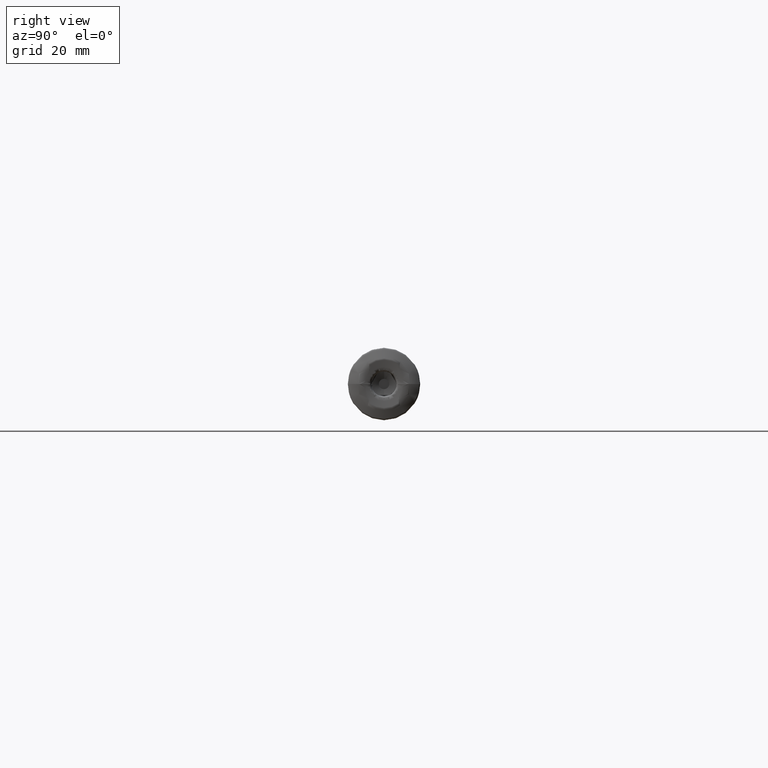
[diagram: clean part render]
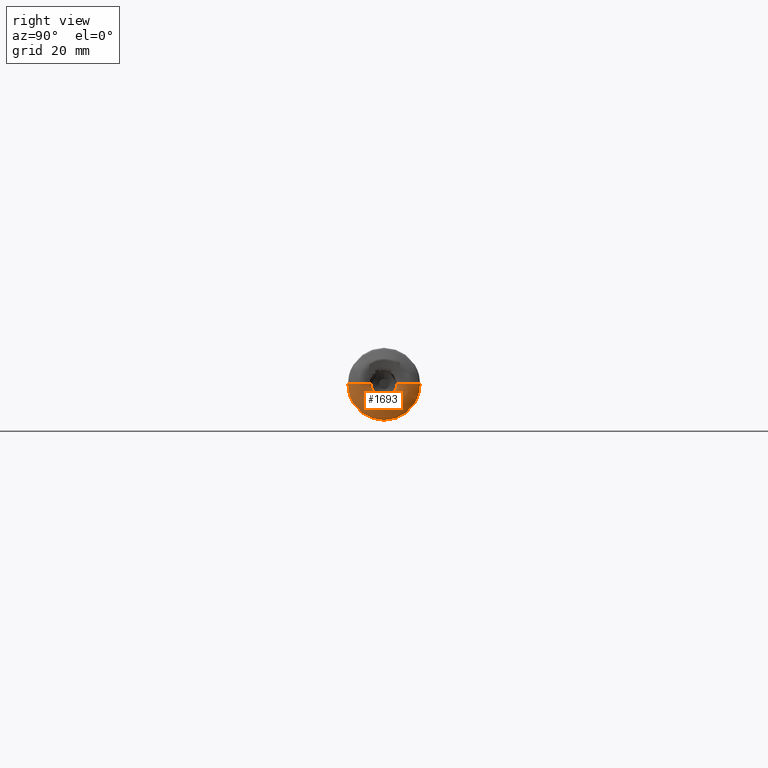
[diagram: same view with one face highlighted and labeled with its STEP entity id]
A machine part, right view. The second image highlights one B-rep face of the part: STEP entity #1693.
In plain terms, the highlighted face is a freeform B-spline surface patch.
Its self-contained STEP definition (entity closure, byte-faithful):
#3 = EDGE_CURVE ( 'NONE', #1426, #2893, #10, .T. ) ;
#5 = CARTESIAN_POINT ( 'NONE',  ( 199.4119645448908800, 8.669143952701206900, 0.0000000000000000000 ) ) ;
#10 = CIRCLE ( 'NONE', #393, 3.524748830736267500 ) ;
#11 = CARTESIAN_POINT ( 'NONE',  ( 195.9548673972028900, 9.771315552143319000, 0.0000000000000000000 ) ) ;
#12 = CARTESIAN_POINT ( 'NONE',  ( 199.5600713942759500, -8.226737700096022000, -1.007484799184745300E-015 ) ) ;
#17 = CARTESIAN_POINT ( 'NONE',  ( 194.6386071151543400, -9.655722273275953800, -1.182484937542320200E-015 ) ) ;
#25 = CARTESIAN_POINT ( 'NONE',  ( 193.7467906099954900, -9.577412630905819000, -19.15482526181163800 ) ) ;
#26 = CARTESIAN_POINT ( 'NONE',  ( 199.6216856158434600, -8.042808869529160600, -9.849600138222828600E-016 ) ) ;
#39 = CARTESIAN_POINT ( 'NONE',  ( 194.2669520451954100, 9.623079687076103300, 0.0000000000000000000 ) ) ;
#40 = CARTESIAN_POINT ( 'NONE',  ( 199.7198599573671900, -4.890791981063745000, -5.989492744905258500E-016 ) ) ;
#42 = CARTESIAN_POINT ( 'NONE',  ( 193.7467906099955100, -9.577412630905820700, -1.172894772255224500E-015 ) ) ;
#53 = CARTESIAN_POINT ( 'NONE',  ( 199.5270704870732200, -3.768665411281232100, -4.615284032982904700E-016 ) ) ;
#63 = ORIENTED_EDGE ( 'NONE', *, *, #3, .T. ) ;
#75 = CARTESIAN_POINT ( 'NONE',  ( 199.5792677437501700, -3.924804937301749100, -4.806499803744314800E-016 ) ) ;
#84 = CARTESIAN_POINT ( 'NONE',  ( 199.8746375878326900, 7.284263749510698100, 0.0000000000000000000 ) ) ;
#97 = CARTESIAN_POINT ( 'NONE',  ( 194.2669520451954100, 9.623079687076103300, 0.0000000000000000000 ) ) ;
#130 = VERTEX_POINT ( 'NONE', #1091 ) ;
#150 = CARTESIAN_POINT ( 'NONE',  ( 197.6599947447499500, -9.920574891577453900, -19.84114978315490800 ) ) ;
#172 = CARTESIAN_POINT ( 'NONE',  ( 191.4293979957715200, -9.372855675777430000, -1.147843770221093300E-015 ) ) ;
#188 = CARTESIAN_POINT ( 'NONE',  ( 191.4638893845114800, -9.376701179652005900, -1.148314708622204000E-015 ) ) ;
#241 = CARTESIAN_POINT ( 'NONE',  ( 199.9575874871412400, -6.476802528865865900, -12.95360505773173200 ) ) ;
#264 = CARTESIAN_POINT ( 'NONE',  ( 199.8818364765468200, 5.969050106520177800, 0.0000000000000000000 ) ) ;
#267 = CARTESIAN_POINT ( 'NONE',  ( 199.9233176210255500, -6.241481303348313000, -7.643610100083561800E-016 ) ) ;
#276 = CARTESIAN_POINT ( 'NONE',  ( 198.5718774307785000, -10.00754271673519100, -20.01508543347038200 ) ) ;
#278 = CARTESIAN_POINT ( 'NONE',  ( 199.9971799208755700, 6.793817987459164000, 0.0000000000000000000 ) ) ;
#299 = CARTESIAN_POINT ( 'NONE',  ( 199.5270704870732200, 3.768665411281232100, 0.0000000000000000000 ) ) ;
#301 = CARTESIAN_POINT ( 'NONE',  ( 198.3345865014057900, 9.974130476694655900, 0.0000000000000000000 ) ) ;
#307 = CARTESIAN_POINT ( 'NONE',  ( 199.3105781519771000, -8.971050438694492300, -1.098636820473666800E-015 ) ) ;
#312 = CARTESIAN_POINT ( 'NONE',  ( 199.4119645448908800, -8.669143952701206900, -1.061663939302316700E-015 ) ) ;
#321 = CARTESIAN_POINT ( 'NONE',  ( 198.3345865014057700, 9.974130476694655900, -19.94826095338930500 ) ) ;
#324 = CARTESIAN_POINT ( 'NONE',  ( 193.7467906099955100, 9.577412630905820700, 0.0000000000000000000 ) ) ;
#325 = CARTESIAN_POINT ( 'NONE',  ( 199.7015285006921500, 7.804126116101917500, 0.0000000000000000000 ) ) ;
#331 = CARTESIAN_POINT ( 'NONE',  ( 198.3345865014057900, 9.974130476694655900, 0.0000000000000000000 ) ) ;
#338 = CARTESIAN_POINT ( 'NONE',  ( 193.1957047401006700, -9.528924728964533100, -19.05784945792906600 ) ) ;
#340 = CARTESIAN_POINT ( 'NONE',  ( 199.6216856158434600, 8.042808869529160600, 0.0000000000000000000 ) ) ;
#347 = CARTESIAN_POINT ( 'NONE',  ( 199.6437202294671100, -4.378186700153892600, -5.361732328412976200E-016 ) ) ;
#359 = CARTESIAN_POINT ( 'NONE',  ( 195.5628970118675300, -9.736894901505726500, -1.192425717476317300E-015 ) ) ;
#360 = CARTESIAN_POINT ( 'NONE',  ( 199.9376653144677200, -7.104203952299462400, -14.20840790459892800 ) ) ;
#362 = CARTESIAN_POINT ( 'NONE',  ( 199.2403954301726400, -3.544720621546354300, -7.089441243092709400 ) ) ;
#374 = CARTESIAN_POINT ( 'NONE',  ( 195.2420344223780800, -9.708715759506176800, -19.41743151901235400 ) ) ;
#376 = CARTESIAN_POINT ( 'NONE',  ( 199.2403954301726400, 3.544720621546354700, -7.089441243092708500 ) ) ;
#377 = CARTESIAN_POINT ( 'NONE',  ( 191.4293979957715200, 9.372855675777435300, 0.0000000000000000000 ) ) ;
#380 = CARTESIAN_POINT ( 'NONE',  ( 196.8045187664748100, -9.845907074256627900, -1.205775858319066000E-015 ) ) ;
#388 = CARTESIAN_POINT ( 'NONE',  ( 196.3749575718929900, 9.808220288187936100, 0.0000000000000000000 ) ) ;
#390 = CARTESIAN_POINT ( 'NONE',  ( 199.7909970509005000, 5.364262816467027400, -10.72852563293405300 ) ) ;
#393 = AXIS2_PLACEMENT_3D ( 'NONE', #1739, #2985, #1384 ) ;
#402 = CARTESIAN_POINT ( 'NONE',  ( 199.7909970509005000, -5.364262816467025600, -10.72852563293405300 ) ) ;
#409 = CARTESIAN_POINT ( 'NONE',  ( 199.3105781519771000, 8.971050438694492300, 0.0000000000000000000 ) ) ;
#459 = CARTESIAN_POINT ( 'NONE',  ( 197.6599947447499500, -9.920574891577455600, -1.214920028667193300E-015 ) ) ;
#463 = CARTESIAN_POINT ( 'NONE',  ( 194.6386071151543400, 9.655722273275953800, 0.0000000000000000000 ) ) ;
#488 = CARTESIAN_POINT ( 'NONE',  ( 198.8874328272482900, 9.927476827135711400, 0.0000000000000000000 ) ) ;
#498 = CARTESIAN_POINT ( 'NONE',  ( 191.8250809874841100, 9.408367885567450600, 0.0000000000000000000 ) ) ;
#572 = CARTESIAN_POINT ( 'NONE',  ( 199.9575874871412400, 6.476802528865867700, 0.0000000000000000000 ) ) ;
#592 = CARTESIAN_POINT ( 'NONE',  ( 199.9971799208755400, 6.793817987459163100, -13.58763597491832400 ) ) ;
#605 = CARTESIAN_POINT ( 'NONE',  ( 199.9971799208755400, -6.793817987459162200, -13.58763597491832400 ) ) ;
#611 = CARTESIAN_POINT ( 'NONE',  ( 199.1398904212730400, -9.476393459065148400, -18.95278691813029700 ) ) ;
#617 = CARTESIAN_POINT ( 'NONE',  ( 199.7942596870010200, 7.528622152444535600, 0.0000000000000000000 ) ) ;
#625 = CARTESIAN_POINT ( 'NONE',  ( 199.4119645448908800, -8.669143952701205100, -17.33828790540241000 ) ) ;
#631 = CARTESIAN_POINT ( 'NONE',  ( 192.1780770274573900, -9.439093133072656600, -1.155955519227119000E-015 ) ) ;
#636 = CARTESIAN_POINT ( 'NONE',  ( 199.5792677437501700, 3.924804937301749100, 0.0000000000000000000 ) ) ;
#641 = CARTESIAN_POINT ( 'NONE',  ( 194.6386071151543400, -9.655722273275953800, -19.31144454655190800 ) ) ;
#642 = CARTESIAN_POINT ( 'NONE',  ( 199.5600713942759800, 8.226737700096022000, -16.45347540019204000 ) ) ;
#648 = CARTESIAN_POINT ( 'NONE',  ( 199.7198599573671900, -4.890791981063745000, -5.989492744905258500E-016 ) ) ;
#656 = CARTESIAN_POINT ( 'NONE',  ( 199.2206415278179500, 9.242613445145174500, -18.48522689029034500 ) ) ;
#661 = CARTESIAN_POINT ( 'NONE',  ( 199.7942596870010200, -7.528622152444535600, -9.219903020981057000E-016 ) ) ;
#669 = CARTESIAN_POINT ( 'NONE',  ( 192.6119085367816100, -9.477933791716461400, -18.95586758343292300 ) ) ;
#670 = CARTESIAN_POINT ( 'NONE',  ( 199.4916733344939000, 8.430952631885135800, 0.0000000000000000000 ) ) ;
#671 = CARTESIAN_POINT ( 'NONE',  ( 199.5792677437501700, 3.924804937301749100, 0.0000000000000000000 ) ) ;
#676 = CARTESIAN_POINT ( 'NONE',  ( 199.3105781519771000, -8.971050438694492300, -1.098636820473666800E-015 ) ) ;
#683 = CARTESIAN_POINT ( 'NONE',  ( 199.6437202294671100, -4.378186700153891700, -8.756373400307783300 ) ) ;
#686 = CARTESIAN_POINT ( 'NONE',  ( 194.2669520451954100, -9.623079687076103300, -1.178487373671766300E-015 ) ) ;
#694 = CARTESIAN_POINT ( 'NONE',  ( 199.7198599573671900, 4.890791981063745000, 0.0000000000000000000 ) ) ;
#702 = CARTESIAN_POINT ( 'NONE',  ( 199.6036751270756000, 4.135506003673531200, 0.0000000000000000000 ) ) ;
#715 = CARTESIAN_POINT ( 'NONE',  ( 198.7389781143983200, 9.990615986158877200, 0.0000000000000000000 ) ) ;
#719 = CARTESIAN_POINT ( 'NONE',  ( 192.1780770274573900, 9.439093133072656600, 0.0000000000000000000 ) ) ;
#720 = CARTESIAN_POINT ( 'NONE',  ( 199.0145282432595800, -9.808799892423826000, -19.61759978484765200 ) ) ;
#722 = CARTESIAN_POINT ( 'NONE',  ( 199.6820012863188700, 4.640381309272351400, -9.280762618544701000 ) ) ;
#755 = CARTESIAN_POINT ( 'NONE',  ( 199.8818364765468200, -5.969050106520177800, -7.309978106900103700E-016 ) ) ;
#765 = CARTESIAN_POINT ( 'NONE',  ( 191.5996406962192700, -9.385338457373437700, -18.77067691474687500 ) ) ;
#799 = CARTESIAN_POINT ( 'NONE',  ( 191.4293979957715200, 9.372855675777435300, 0.0000000000000000000 ) ) ;
#866 = CARTESIAN_POINT ( 'NONE',  ( 198.7389781143983200, 9.990615986158877200, 0.0000000000000000000 ) ) ;
#891 = CARTESIAN_POINT ( 'NONE',  ( 199.9575874871412400, 6.476802528865868600, -12.95360505773173200 ) ) ;
#901 = CARTESIAN_POINT ( 'NONE',  ( 199.9806326561305500, 6.952329924318734200, 0.0000000000000000000 ) ) ;
#932 = CARTESIAN_POINT ( 'NONE',  ( 199.1376732748907400, 3.524748830736267500, 0.0000000000000000000 ) ) ;
#942 = CARTESIAN_POINT ( 'NONE',  ( 199.3105781519771000, 8.971050438694490500, -17.94210087738898100 ) ) ;
#945 = CARTESIAN_POINT ( 'NONE',  ( 199.0883015219359600, -9.649449036425453500, -1.181716687599394500E-015 ) ) ;
#949 = CARTESIAN_POINT ( 'NONE',  ( 199.7198599573671900, 4.890791981063745000, 0.0000000000000000000 ) ) ;
#956 = CARTESIAN_POINT ( 'NONE',  ( 199.7015285006921800, 7.804126116101918400, -15.60825223220383200 ) ) ;
#963 = CARTESIAN_POINT ( 'NONE',  ( 198.7389781143983200, -9.990615986158877200, -1.223497588895984700E-015 ) ) ;
#972 = CARTESIAN_POINT ( 'NONE',  ( 193.7467906099954900, 9.577412630905820700, -19.15482526181163800 ) ) ;
#973 = CARTESIAN_POINT ( 'NONE',  ( 199.1398904212730400, 9.476393459065150200, 0.0000000000000000000 ) ) ;
#975 = CARTESIAN_POINT ( 'NONE',  ( 199.6036751270756000, 4.135506003673530300, -8.271012007347060500 ) ) ;
#979 = CARTESIAN_POINT ( 'NONE',  ( 194.9679311315870200, -9.684643535001368900, -1.186026770602253300E-015 ) ) ;
#992 = CARTESIAN_POINT ( 'NONE',  ( 191.4293979957715200, -9.372855675777435300, -1.147843770221093700E-015 ) ) ;
#1002 = CARTESIAN_POINT ( 'NONE',  ( 194.9679311315870200, -9.684643535001367100, -19.36928707000273400 ) ) ;
#1007 = CARTESIAN_POINT ( 'NONE',  ( 195.2420344223780800, -9.708715759506178600, -1.188974767871070500E-015 ) ) ;
#1021 = CARTESIAN_POINT ( 'NONE',  ( 195.9548673972028900, -9.771315552143317300, -19.54263110428663500 ) ) ;
#1022 = CARTESIAN_POINT ( 'NONE',  ( 199.7909970509005000, -5.364262816467027400, -6.569327287971511100E-016 ) ) ;
#1027 = CARTESIAN_POINT ( 'NONE',  ( 199.3855371809107500, 3.600040746353761800, 0.0000000000000000000 ) ) ;
#1032 = CARTESIAN_POINT ( 'NONE',  ( 199.5270704870731900, 3.768665411281232600, -7.537330822562462500 ) ) ;
#1047 = CARTESIAN_POINT ( 'NONE',  ( 195.9548673972028900, 9.771315552143319000, 0.0000000000000000000 ) ) ;
#1084 = CARTESIAN_POINT ( 'NONE',  ( 191.5996406962192700, -9.385338457373439500, -1.149372470073694100E-015 ) ) ;
#1091 = CARTESIAN_POINT ( 'NONE',  ( 191.4293979957715200, -9.372855675777435300, -1.147843770221093700E-015 ) ) ;
#1104 = CARTESIAN_POINT ( 'NONE',  ( 197.2499513093479200, 9.885197841270109400, -19.77039568254021900 ) ) ;
#1131 = CARTESIAN_POINT ( 'NONE',  ( 198.0467923785635900, 9.955370482197189100, 0.0000000000000000000 ) ) ;
#1214 = CARTESIAN_POINT ( 'NONE',  ( 199.9806326561305500, -6.952329924318734200, -8.514148588433299100E-016 ) ) ;
#1230 = CARTESIAN_POINT ( 'NONE',  ( 199.9376653144677200, 7.104203952299464200, -14.20840790459892500 ) ) ;
#1246 = CARTESIAN_POINT ( 'NONE',  ( 199.1376732748907400, 3.524748830736267500, 0.0000000000000000000 ) ) ;
#1252 = CARTESIAN_POINT ( 'NONE',  ( 199.0883015219359600, 9.649449036425453500, 0.0000000000000000000 ) ) ;
#1263 = CARTESIAN_POINT ( 'NONE',  ( 199.6216856158434300, -8.042808869529158900, -16.08561773905831800 ) ) ;
#1268 = CARTESIAN_POINT ( 'NONE',  ( 199.7015285006921500, -7.804126116101917500, -9.557298068226478200E-016 ) ) ;
#1270 = CARTESIAN_POINT ( 'NONE',  ( 199.5600713942759500, 8.226737700096022000, 0.0000000000000000000 ) ) ;
#1274 = CARTESIAN_POINT ( 'NONE',  ( 199.2206415278179500, -9.242613445145172700, -18.48522689029034500 ) ) ;
#1281 = CARTESIAN_POINT ( 'NONE',  ( 199.9376653144676900, -7.104203952299465100, -8.700140630673515900E-016 ) ) ;
#1288 = CARTESIAN_POINT ( 'NONE',  ( 195.2420344223780800, 9.708715759506178600, 0.0000000000000000000 ) ) ;
#1289 = CARTESIAN_POINT ( 'NONE',  ( 199.1376732748907400, -3.524748830736266200, -7.049497661472532400 ) ) ;
#1291 = CARTESIAN_POINT ( 'NONE',  ( 192.6119085367816100, -9.477933791716463200, -1.160712128055610400E-015 ) ) ;
#1300 = CARTESIAN_POINT ( 'NONE',  ( 199.2403954301726400, 3.544720621546354700, 0.0000000000000000000 ) ) ;
#1304 = CARTESIAN_POINT ( 'NONE',  ( 199.8310191858334700, -5.630263486872677500, -6.895084157554840300E-016 ) ) ;
#1309 = CARTESIAN_POINT ( 'NONE',  ( 199.7503744142412400, -5.094116356522774500, -6.238493290499792400E-016 ) ) ;
#1312 = CARTESIAN_POINT ( 'NONE',  ( 199.9806326561305500, -6.952329924318734200, -8.514148588433299100E-016 ) ) ;
#1320 = CARTESIAN_POINT ( 'NONE',  ( 194.6386071151543400, 9.655722273275953800, 0.0000000000000000000 ) ) ;
#1322 = CARTESIAN_POINT ( 'NONE',  ( 199.8310191858335000, 5.630263486872677500, -11.26052697374535300 ) ) ;
#1338 = CARTESIAN_POINT ( 'NONE',  ( 199.0883015219359600, 9.649449036425453500, 0.0000000000000000000 ) ) ;
#1339 = CARTESIAN_POINT ( 'NONE',  ( 199.6820012863188900, -4.640381309272351400, -5.682828117223588900E-016 ) ) ;
#1356 = CARTESIAN_POINT ( 'NONE',  ( 192.1780770274573900, -9.439093133072656600, -1.155955519227119000E-015 ) ) ;
#1368 = CARTESIAN_POINT ( 'NONE',  ( 199.9971799208755700, 6.793817987459164000, 0.0000000000000000000 ) ) ;
#1384 = DIRECTION ( 'NONE',  ( 0.0000000000000000000, 1.000000000000000000, 0.0000000000000000000 ) ) ;
#1394 = CARTESIAN_POINT ( 'NONE',  ( 191.8250809874841100, -9.408367885567450600, -1.152192761626093000E-015 ) ) ;
#1426 = VERTEX_POINT ( 'NONE', #3605 ) ;
#1427 = CARTESIAN_POINT ( 'NONE',  ( 191.5996406962192700, 9.385338457373439500, 0.0000000000000000000 ) ) ;
#1510 = CIRCLE ( 'NONE', #2238, 9.372855675777433500 ) ;
#1518 = CARTESIAN_POINT ( 'NONE',  ( 199.9833844350473000, -6.633335259903448700, -13.26667051980689700 ) ) ;
#1544 = CARTESIAN_POINT ( 'NONE',  ( 199.9806326561305500, -6.952329924318732400, -13.90465984863746500 ) ) ;
#1573 = CARTESIAN_POINT ( 'NONE',  ( 199.4119645448908800, -8.669143952701206900, -1.061663939302316700E-015 ) ) ;
#1580 = CARTESIAN_POINT ( 'NONE',  ( 197.6599947447499500, 9.920574891577455600, 0.0000000000000000000 ) ) ;
#1586 = CARTESIAN_POINT ( 'NONE',  ( 194.6386071151543400, -9.655722273275953800, -1.182484937542320200E-015 ) ) ;
#1587 = CARTESIAN_POINT ( 'NONE',  ( 199.4916733344939000, -8.430952631885134000, -16.86190526377026800 ) ) ;
#1593 = CARTESIAN_POINT ( 'NONE',  ( 191.4638893845114800, -9.376701179652007700, -1.148314708622204000E-015 ) ) ;
#1603 = CARTESIAN_POINT ( 'NONE',  ( 195.9548673972028900, -9.771315552143319000, -1.196641031439107000E-015 ) ) ;
#1610 = CARTESIAN_POINT ( 'NONE',  ( 198.5718774307784700, -10.00754271673519300, -1.225570515538016000E-015 ) ) ;
#1617 = CARTESIAN_POINT ( 'NONE',  ( 196.3749575718929900, -9.808220288187934300, -19.61644057637586900 ) ) ;
#1618 = CARTESIAN_POINT ( 'NONE',  ( 199.8746375878326900, -7.284263749510697200, -14.56852749902139400 ) ) ;
#1619 = CARTESIAN_POINT ( 'NONE',  ( 199.6437202294671100, -4.378186700153892600, -5.361732328412976200E-016 ) ) ;
#1625 = CARTESIAN_POINT ( 'NONE',  ( 191.5996406962192700, -9.385338457373439500, -1.149372470073694100E-015 ) ) ;
#1635 = CARTESIAN_POINT ( 'NONE',  ( 195.2420344223780800, 9.708715759506178600, -19.41743151901235400 ) ) ;
#1636 = CARTESIAN_POINT ( 'NONE',  ( 199.4916733344939000, 8.430952631885135800, -16.86190526377026800 ) ) ;
#1649 = CARTESIAN_POINT ( 'NONE',  ( 199.5792677437501700, 3.924804937301749100, -7.849609874603497200 ) ) ;
#1653 = CARTESIAN_POINT ( 'NONE',  ( 197.2499513093479500, -9.885197841270111100, -1.210587589524976800E-015 ) ) ;
#1665 = CARTESIAN_POINT ( 'NONE',  ( 199.8310191858334700, -5.630263486872677500, -6.895084157554840300E-016 ) ) ;
#1676 = CARTESIAN_POINT ( 'NONE',  ( 199.2403954301726400, 3.544720621546354700, 0.0000000000000000000 ) ) ;
#1679 = DIRECTION ( 'NONE',  ( 0.0000000000000000000, 1.000000000000000000, 0.0000000000000000000 ) ) ;
#1691 = CARTESIAN_POINT ( 'NONE',  ( 199.2206415278179500, 9.242613445145174500, 0.0000000000000000000 ) ) ;
#1693 = ADVANCED_FACE ( 'NONE', ( #3847 ), #2750, .F. ) ;
#1705 = CARTESIAN_POINT ( 'NONE',  ( 199.9376653144676900, 7.104203952299465100, 0.0000000000000000000 ) ) ;
#1711 = CARTESIAN_POINT ( 'NONE',  ( 199.0145282432595500, -9.808799892423829500, -1.201231539173374500E-015 ) ) ;
#1733 = CARTESIAN_POINT ( 'NONE',  ( 191.5996406962192700, 9.385338457373439500, -18.77067691474687500 ) ) ;
#1738 = CARTESIAN_POINT ( 'NONE',  ( 198.0467923785635900, -9.955370482197189100, -19.91074096439437800 ) ) ;
#1739 = CARTESIAN_POINT ( 'NONE',  ( 199.1376732748907400, 0.0000000000000000000, 0.0000000000000000000 ) ) ;
#1786 = CARTESIAN_POINT ( 'NONE',  ( 197.6599947447499500, 9.920574891577455600, -19.84114978315490800 ) ) ;
#1809 = CARTESIAN_POINT ( 'NONE',  ( 191.4638893845115000, 9.376701179652005900, -18.75340235930400800 ) ) ;
#1893 = CARTESIAN_POINT ( 'NONE',  ( 199.3855371809107500, -3.600040746353761800, -4.408778376822182600E-016 ) ) ;
#1922 = CARTESIAN_POINT ( 'NONE',  ( 199.2206415278179500, -9.242613445145174500, -1.131893697135332700E-015 ) ) ;
#1924 = CARTESIAN_POINT ( 'NONE',  ( 199.6437202294671100, 4.378186700153892600, 0.0000000000000000000 ) ) ;
#1929 = CARTESIAN_POINT ( 'NONE',  ( 195.5628970118675600, -9.736894901505724700, -19.47378980301144900 ) ) ;
#1930 = CARTESIAN_POINT ( 'NONE',  ( 199.9376653144676900, -7.104203952299465100, -8.700140630673515900E-016 ) ) ;
#1950 = CARTESIAN_POINT ( 'NONE',  ( 194.9679311315870200, 9.684643535001368900, -19.36928707000273400 ) ) ;
#1955 = CARTESIAN_POINT ( 'NONE',  ( 199.9971799208755700, -6.793817987459164000, -8.320027452331577100E-016 ) ) ;
#1967 = CARTESIAN_POINT ( 'NONE',  ( 193.1957047401006400, -9.528924728964534900, -1.166956716864248100E-015 ) ) ;
#1969 = CARTESIAN_POINT ( 'NONE',  ( 199.5270704870731900, -3.768665411281231200, -7.537330822562463300 ) ) ;
#1979 = CARTESIAN_POINT ( 'NONE',  ( 195.2420344223780800, -9.708715759506178600, -1.188974767871070500E-015 ) ) ;
#1980 = CARTESIAN_POINT ( 'NONE',  ( 199.1398904212730400, 9.476393459065150200, -18.95278691813029700 ) ) ;
#1981 = CARTESIAN_POINT ( 'NONE',  ( 199.6820012863188900, 4.640381309272351400, 0.0000000000000000000 ) ) ;
#1986 = CARTESIAN_POINT ( 'NONE',  ( 196.3749575718929900, -9.808220288187936100, -1.201160558126148800E-015 ) ) ;
#1995 = CARTESIAN_POINT ( 'NONE',  ( 196.8045187664748100, 9.845907074256627900, 0.0000000000000000000 ) ) ;
#1997 = CARTESIAN_POINT ( 'NONE',  ( 199.3855371809107500, 3.600040746353761800, 0.0000000000000000000 ) ) ;
#2018 = CARTESIAN_POINT ( 'NONE',  ( 199.9575874871412400, 6.476802528865867700, 0.0000000000000000000 ) ) ;
#2024 = CARTESIAN_POINT ( 'NONE',  ( 199.0883015219359600, 9.649449036425453500, -19.29889807285090300 ) ) ;
#2025 = CARTESIAN_POINT ( 'NONE',  ( 199.5270704870732200, 3.768665411281232100, 0.0000000000000000000 ) ) ;
#2051 = CARTESIAN_POINT ( 'NONE',  ( 199.0883015219359600, -9.649449036425453500, -1.181716687599394500E-015 ) ) ;
#2173 = CARTESIAN_POINT ( 'NONE',  ( 198.7389781143983200, -9.990615986158877200, -19.98123197231775400 ) ) ;
#2199 = CARTESIAN_POINT ( 'NONE',  ( 199.9233176210255500, -6.241481303348311200, -12.48296260669662200 ) ) ;
#2216 = CARTESIAN_POINT ( 'NONE',  ( 199.9575874871412400, -6.476802528865867700, -7.931795485685067600E-016 ) ) ;
#2228 = EDGE_LOOP ( 'NONE', ( #63, #2515, #2498, #3158 ) ) ;
#2237 = CARTESIAN_POINT ( 'NONE',  ( 199.8818364765468200, 5.969050106520177800, 0.0000000000000000000 ) ) ;
#2238 = AXIS2_PLACEMENT_3D ( 'NONE', #3560, #3883, #1679 ) ;
#2244 = VERTEX_POINT ( 'NONE', #377 ) ;
#2245 = CARTESIAN_POINT ( 'NONE',  ( 199.7942596870010200, -7.528622152444535600, -9.219903020981057000E-016 ) ) ;
#2249 = CARTESIAN_POINT ( 'NONE',  ( 198.3345865014057900, -9.974130476694655900, -1.221478696256217500E-015 ) ) ;
#2259 = CARTESIAN_POINT ( 'NONE',  ( 192.6119085367816100, 9.477933791716463200, -18.95586758343292300 ) ) ;
#2260 = CARTESIAN_POINT ( 'NONE',  ( 199.8746375878326900, -7.284263749510698100, -8.920650284983374200E-016 ) ) ;
#2270 = CARTESIAN_POINT ( 'NONE',  ( 198.5718774307784700, 10.00754271673519300, 0.0000000000000000000 ) ) ;
#2276 = CARTESIAN_POINT ( 'NONE',  ( 194.2669520451954100, 9.623079687076103300, -19.24615937415220300 ) ) ;
#2277 = CARTESIAN_POINT ( 'NONE',  ( 199.2206415278179500, 9.242613445145174500, 0.0000000000000000000 ) ) ;
#2291 = CARTESIAN_POINT ( 'NONE',  ( 199.1376732748907400, -3.524748830736267500, -4.316572373359546000E-016 ) ) ;
#2294 = CARTESIAN_POINT ( 'NONE',  ( 199.9833844350472700, -6.633335259903450500, -8.123492793712038100E-016 ) ) ;
#2302 = CARTESIAN_POINT ( 'NONE',  ( 194.9679311315870200, 9.684643535001368900, 0.0000000000000000000 ) ) ;
#2303 = CARTESIAN_POINT ( 'NONE',  ( 199.3105781519771000, 8.971050438694492300, 0.0000000000000000000 ) ) ;
#2305 = CARTESIAN_POINT ( 'NONE',  ( 199.7503744142412400, 5.094116356522774500, -10.18823271304554700 ) ) ;
#2315 = CARTESIAN_POINT ( 'NONE',  ( 199.7503744142412400, -5.094116356522773600, -10.18823271304554700 ) ) ;
#2332 = CARTESIAN_POINT ( 'NONE',  ( 199.6036751270756000, -4.135506003673530300, -8.271012007347060500 ) ) ;
#2340 = CARTESIAN_POINT ( 'NONE',  ( 199.7015285006921500, 7.804126116101917500, 0.0000000000000000000 ) ) ;
#2347 = CARTESIAN_POINT ( 'NONE',  ( 199.0883015219359600, -9.649449036425451700, -19.29889807285090300 ) ) ;
#2348 = CARTESIAN_POINT ( 'NONE',  ( 199.6820012863188700, -4.640381309272350500, -9.280762618544701000 ) ) ;
#2359 = CARTESIAN_POINT ( 'NONE',  ( 191.8250809874841100, 9.408367885567450600, 0.0000000000000000000 ) ) ;
#2369 = CARTESIAN_POINT ( 'NONE',  ( 192.1780770274573900, 9.439093133072656600, 0.0000000000000000000 ) ) ;
#2479 = CARTESIAN_POINT ( 'NONE',  ( 198.8874328272482900, -9.927476827135709700, -19.85495365427141900 ) ) ;
#2498 = ORIENTED_EDGE ( 'NONE', *, *, #3106, .F. ) ;
#2515 = ORIENTED_EDGE ( 'NONE', *, *, #3960, .T. ) ;
#2516 = CARTESIAN_POINT ( 'NONE',  ( 199.9833844350472700, -6.633335259903450500, -8.123492793712038100E-016 ) ) ;
#2533 = CARTESIAN_POINT ( 'NONE',  ( 199.1376732748907400, -3.524748830736267500, -4.316572373359582500E-016 ) ) ;
#2540 = CARTESIAN_POINT ( 'NONE',  ( 199.8746375878326900, 7.284263749510698100, 0.0000000000000000000 ) ) ;
#2549 = CARTESIAN_POINT ( 'NONE',  ( 199.9233176210255500, 6.241481303348313000, 0.0000000000000000000 ) ) ;
#2558 = CARTESIAN_POINT ( 'NONE',  ( 199.7942596870010200, 7.528622152444535600, 0.0000000000000000000 ) ) ;
#2564 = CARTESIAN_POINT ( 'NONE',  ( 193.1957047401006400, -9.528924728964534900, -1.166956716864248100E-015 ) ) ;
#2574 = CARTESIAN_POINT ( 'NONE',  ( 199.7015285006921800, -7.804126116101915800, -15.60825223220383300 ) ) ;
#2579 = CARTESIAN_POINT ( 'NONE',  ( 199.0145282432595500, -9.808799892423829500, -1.201231539173374500E-015 ) ) ;
#2589 = CARTESIAN_POINT ( 'NONE',  ( 194.6386071151543400, 9.655722273275953800, -19.31144454655190800 ) ) ;
#2590 = CARTESIAN_POINT ( 'NONE',  ( 199.6216856158434300, 8.042808869529158900, -16.08561773905831800 ) ) ;
#2595 = CARTESIAN_POINT ( 'NONE',  ( 199.9233176210255500, -6.241481303348313000, -7.643610100083561800E-016 ) ) ;
#2602 = CARTESIAN_POINT ( 'NONE',  ( 192.6119085367816100, 9.477933791716463200, 0.0000000000000000000 ) ) ;
#2603 = CARTESIAN_POINT ( 'NONE',  ( 199.5600713942759500, 8.226737700096022000, 0.0000000000000000000 ) ) ;
#2604 = CARTESIAN_POINT ( 'NONE',  ( 199.3855371809107500, -3.600040746353761800, -4.408778376822182600E-016 ) ) ;
#2621 = CARTESIAN_POINT ( 'NONE',  ( 195.5628970118675300, -9.736894901505726500, -1.192425717476317300E-015 ) ) ;
#2631 = CARTESIAN_POINT ( 'NONE',  ( 196.8045187664747900, 9.845907074256627900, -19.69181414851324900 ) ) ;
#2654 = CARTESIAN_POINT ( 'NONE',  ( 199.1398904212730400, 9.476393459065150200, 0.0000000000000000000 ) ) ;
#2657 = CARTESIAN_POINT ( 'NONE',  ( 192.6119085367816100, -9.477933791716463200, -1.160712128055610400E-015 ) ) ;
#2658 = CARTESIAN_POINT ( 'NONE',  ( 199.0145282432595500, 9.808799892423829500, 0.0000000000000000000 ) ) ;
#2660 = CARTESIAN_POINT ( 'NONE',  ( 199.5792677437501700, -3.924804937301748600, -7.849609874603497200 ) ) ;
#2665 = CARTESIAN_POINT ( 'NONE',  ( 198.0467923785635900, 9.955370482197189100, 0.0000000000000000000 ) ) ;
#2702 = CARTESIAN_POINT ( 'NONE',  ( 192.6119085367816100, 9.477933791716463200, 0.0000000000000000000 ) ) ;
#2707 = CARTESIAN_POINT ( 'NONE',  ( 191.4293979957715200, 9.372855675777430000, 0.0000000000000000000 ) ) ;
#2712 = CARTESIAN_POINT ( 'NONE',  ( 197.2499513093479200, -9.885197841270109400, -19.77039568254021900 ) ) ;
#2727 = CARTESIAN_POINT ( 'NONE',  ( 199.9233176210255500, 6.241481303348312100, -12.48296260669662200 ) ) ;
#2729 = CARTESIAN_POINT ( 'NONE',  ( 197.2499513093479500, -9.885197841270111100, -1.210587589524976800E-015 ) ) ;
#2750 =( BOUNDED_SURFACE ( )  B_SPLINE_SURFACE ( 3, 3, ( 
 ( #1246, #3232, #1289, #2291 ),
 ( #1300, #376, #362, #3912 ),
 ( #1997, #2926, #3246, #2604 ),
 ( #2025, #1032, #1969, #53 ),
 ( #671, #1649, #2660, #75 ),
 ( #3900, #975, #2332, #2911 ),
 ( #3536, #3874, #683, #1619 ),
 ( #1981, #722, #2348, #1339 ),
 ( #694, #2949, #3561, #40 ),
 ( #3857, #2305, #2315, #1309 ),
 ( #2937, #390, #402, #1022 ),
 ( #3259, #1322, #3572, #1665 ),
 ( #264, #3532, #3566, #755 ),
 ( #3031, #2727, #2199, #267 ),
 ( #572, #891, #241, #2216 ),
 ( #2843, #3161, #1518, #2516 ),
 ( #278, #592, #605, #2833 ),
 ( #901, #3145, #1544, #1214 ),
 ( #3788, #1230, #360, #1930 ),
 ( #2540, #3230, #1618, #2260 ),
 ( #2558, #3550, #4142, #2245 ),
 ( #325, #956, #2574, #2865 ),
 ( #340, #2590, #1263, #26 ),
 ( #2603, #642, #3505, #12 ),
 ( #670, #1636, #1587, #3873 ),
 ( #2877, #3832, #625, #1573 ),
 ( #2303, #942, #3201, #307 ),
 ( #2277, #656, #1274, #2896 ),
 ( #973, #1980, #611, #3215 ),
 ( #1338, #2024, #2347, #2051 ),
 ( #2658, #3299, #720, #1711 ),
 ( #488, #4033, #2479, #3728 ),
 ( #866, #3744, #2173, #3785 ),
 ( #3798, #3131, #276, #4112 ),
 ( #301, #321, #3198, #3845 ),
 ( #1131, #3988, #1738, #3043 ),
 ( #3966, #1786, #150, #459 ),
 ( #3982, #1104, #2712, #2729 ),
 ( #1995, #2631, #3214, #3549 ),
 ( #388, #3521, #1617, #2876 ),
 ( #11, #2936, #1021, #1603 ),
 ( #2895, #2925, #1929, #359 ),
 ( #1288, #1635, #374, #1979 ),
 ( #2302, #1950, #1002, #3257 ),
 ( #1320, #2589, #641, #1586 ),
 ( #39, #2276, #3872, #3244 ),
 ( #324, #972, #25, #3534 ),
 ( #3831, #4141, #338, #1967 ),
 ( #2602, #2259, #669, #2657 ),
 ( #719, #3571, #3279, #1356 ),
 ( #2359, #3298, #3942, #1394 ),
 ( #3632, #1733, #765, #1084 ),
 ( #3899, #1809, #4022, #188 ),
 ( #2707, #4010, #3663, #172 ) ),
 .UNSPECIFIED., .F., .F., .F. ) 
 B_SPLINE_SURFACE_WITH_KNOTS ( ( 4, 1, 1, 1, 1, 1, 1, 1, 1, 1, 1, 1, 1, 1, 1, 1, 1, 1, 1, 1, 1, 1, 1, 1, 1, 1, 1, 1, 1, 1, 1, 1, 1, 1, 1, 1, 1, 1, 1, 1, 1, 1, 1, 1, 1, 1, 1, 1, 1, 1, 1, 4 ),
 ( 4, 4 ),
 ( 0.0000000000000000000, 0.01079642995104131700, 0.01532348834993373400, 0.02260252296964555100, 0.02757266909529279200, 0.03750404126298397700, 0.04827019890016406200, 0.05525234195834419900, 0.06395321772346114500, 0.06974363027567580300, 0.08378375853898870100, 0.09204725388762882700, 0.1055225025609145600, 0.1125648133953223700, 0.1168827842677838300, 0.1220909148123621200, 0.1293484100016217800, 0.1333611602596157500, 0.1385586123173471200, 0.1492703210375646600, 0.1602272768487568700, 0.1689184821719552600, 0.1755562854995513200, 0.1804861160482607000, 0.1914113094369782300, 0.2017893496055303800, 0.2137469297706997800, 0.2212919403033521700, 0.2276110718369053200, 0.2326192677104103000, 0.2394468212576911200, 0.2452085252564957200, 0.2491655890603337900, 0.2568398856194478200, 0.2701198177925744900, 0.2793170045755716300, 0.2973905859228663200, 0.3131081852445027300, 0.3260177972526310300, 0.3424268269101061200, 0.3571515908891341200, 0.3671130111343015600, 0.3760669169686796700, 0.3858893146677768700, 0.4016402017108171000, 0.4150323301055715600, 0.4404239630766488800, 0.4594204364518828000, 0.4762300847904728000, 0.4859319036808278900, 0.4963883166608952200, 0.5000000000000018900 ),
 ( 0.0000000000000000000, 1.000000000000000000 ),
 .UNSPECIFIED. ) 
 GEOMETRIC_REPRESENTATION_ITEM ( )  RATIONAL_B_SPLINE_SURFACE ( (
 ( 1.000000000000000000, 0.3333333333333334300, 0.3333333333333334300, 1.000000000000000000),
 ( 1.000000000000000000, 0.3333333333333334300, 0.3333333333333334300, 1.000000000000000000),
 ( 1.000000000000000000, 0.3333333333333334300, 0.3333333333333334300, 1.000000000000000000),
 ( 1.000000000000000000, 0.3333333333333334300, 0.3333333333333334300, 1.000000000000000000),
 ( 1.000000000000000000, 0.3333333333333334300, 0.3333333333333334300, 1.000000000000000000),
 ( 1.000000000000000000, 0.3333333333333334300, 0.3333333333333334300, 1.000000000000000000),
 ( 1.000000000000000000, 0.3333333333333334300, 0.3333333333333334300, 1.000000000000000000),
 ( 1.000000000000000000, 0.3333333333333334300, 0.3333333333333334300, 1.000000000000000000),
 ( 1.000000000000000000, 0.3333333333333334300, 0.3333333333333334300, 1.000000000000000000),
 ( 1.000000000000000000, 0.3333333333333334300, 0.3333333333333334300, 1.000000000000000000),
 ( 1.000000000000000000, 0.3333333333333334300, 0.3333333333333334300, 1.000000000000000000),
 ( 1.000000000000000000, 0.3333333333333334300, 0.3333333333333334300, 1.000000000000000000),
 ( 1.000000000000000000, 0.3333333333333334300, 0.3333333333333334300, 1.000000000000000000),
 ( 1.000000000000000000, 0.3333333333333334300, 0.3333333333333334300, 1.000000000000000000),
 ( 1.000000000000000000, 0.3333333333333334300, 0.3333333333333334300, 1.000000000000000000),
 ( 1.000000000000000000, 0.3333333333333334300, 0.3333333333333334300, 1.000000000000000000),
 ( 1.000000000000000000, 0.3333333333333334300, 0.3333333333333334300, 1.000000000000000000),
 ( 1.000000000000000000, 0.3333333333333334300, 0.3333333333333334300, 1.000000000000000000),
 ( 1.000000000000000000, 0.3333333333333334300, 0.3333333333333334300, 1.000000000000000000),
 ( 1.000000000000000000, 0.3333333333333334300, 0.3333333333333334300, 1.000000000000000000),
 ( 1.000000000000000000, 0.3333333333333334300, 0.3333333333333334300, 1.000000000000000000),
 ( 1.000000000000000000, 0.3333333333333334300, 0.3333333333333334300, 1.000000000000000000),
 ( 1.000000000000000000, 0.3333333333333334300, 0.3333333333333334300, 1.000000000000000000),
 ( 1.000000000000000000, 0.3333333333333334300, 0.3333333333333334300, 1.000000000000000000),
 ( 1.000000000000000000, 0.3333333333333334300, 0.3333333333333334300, 1.000000000000000000),
 ( 1.000000000000000000, 0.3333333333333334300, 0.3333333333333334300, 1.000000000000000000),
 ( 1.000000000000000000, 0.3333333333333334300, 0.3333333333333334300, 1.000000000000000000),
 ( 1.000000000000000000, 0.3333333333333334300, 0.3333333333333334300, 1.000000000000000000),
 ( 1.000000000000000000, 0.3333333333333334300, 0.3333333333333334300, 1.000000000000000000),
 ( 1.000000000000000000, 0.3333333333333334300, 0.3333333333333334300, 1.000000000000000000),
 ( 1.000000000000000000, 0.3333333333333334300, 0.3333333333333334300, 1.000000000000000000),
 ( 1.000000000000000000, 0.3333333333333334300, 0.3333333333333334300, 1.000000000000000000),
 ( 1.000000000000000000, 0.3333333333333334300, 0.3333333333333334300, 1.000000000000000000),
 ( 1.000000000000000000, 0.3333333333333334300, 0.3333333333333334300, 1.000000000000000000),
 ( 1.000000000000000000, 0.3333333333333334300, 0.3333333333333334300, 1.000000000000000000),
 ( 1.000000000000000000, 0.3333333333333334300, 0.3333333333333334300, 1.000000000000000000),
 ( 1.000000000000000000, 0.3333333333333334300, 0.3333333333333334300, 1.000000000000000000),
 ( 1.000000000000000000, 0.3333333333333334300, 0.3333333333333334300, 1.000000000000000000),
 ( 1.000000000000000000, 0.3333333333333334300, 0.3333333333333334300, 1.000000000000000000),
 ( 1.000000000000000000, 0.3333333333333334300, 0.3333333333333334300, 1.000000000000000000),
 ( 1.000000000000000000, 0.3333333333333334300, 0.3333333333333334300, 1.000000000000000000),
 ( 1.000000000000000000, 0.3333333333333334300, 0.3333333333333334300, 1.000000000000000000),
 ( 1.000000000000000000, 0.3333333333333334300, 0.3333333333333334300, 1.000000000000000000),
 ( 1.000000000000000000, 0.3333333333333334300, 0.3333333333333334300, 1.000000000000000000),
 ( 1.000000000000000000, 0.3333333333333334300, 0.3333333333333334300, 1.000000000000000000),
 ( 1.000000000000000000, 0.3333333333333334300, 0.3333333333333334300, 1.000000000000000000),
 ( 1.000000000000000000, 0.3333333333333334300, 0.3333333333333334300, 1.000000000000000000),
 ( 1.000000000000000000, 0.3333333333333334300, 0.3333333333333334300, 1.000000000000000000),
 ( 1.000000000000000000, 0.3333333333333334300, 0.3333333333333334300, 1.000000000000000000),
 ( 1.000000000000000000, 0.3333333333333334300, 0.3333333333333334300, 1.000000000000000000),
 ( 1.000000000000000000, 0.3333333333333334300, 0.3333333333333334300, 1.000000000000000000),
 ( 1.000000000000000000, 0.3333333333333334300, 0.3333333333333334300, 1.000000000000000000),
 ( 1.000000000000000000, 0.3333333333333334300, 0.3333333333333334300, 1.000000000000000000),
 ( 1.000000000000000000, 0.3333333333333334300, 0.3333333333333334300, 1.000000000000000000) ) ) 
 REPRESENTATION_ITEM ( '' )  SURFACE ( )  );
#2833 = CARTESIAN_POINT ( 'NONE',  ( 199.9971799208755700, -6.793817987459164000, -8.320027452331577100E-016 ) ) ;
#2843 = CARTESIAN_POINT ( 'NONE',  ( 199.9833844350472700, 6.633335259903450500, 0.0000000000000000000 ) ) ;
#2853 = CARTESIAN_POINT ( 'NONE',  ( 199.1376732748907400, -3.524748830736267500, -4.316572373359582500E-016 ) ) ;
#2859 = CARTESIAN_POINT ( 'NONE',  ( 199.6216856158434600, 8.042808869529160600, 0.0000000000000000000 ) ) ;
#2865 = CARTESIAN_POINT ( 'NONE',  ( 199.7015285006921500, -7.804126116101917500, -9.557298068226478200E-016 ) ) ;
#2869 = CARTESIAN_POINT ( 'NONE',  ( 191.8250809874841100, -9.408367885567450600, -1.152192761626093000E-015 ) ) ;
#2872 = CARTESIAN_POINT ( 'NONE',  ( 199.6820012863188900, 4.640381309272351400, 0.0000000000000000000 ) ) ;
#2876 = CARTESIAN_POINT ( 'NONE',  ( 196.3749575718929900, -9.808220288187936100, -1.201160558126148800E-015 ) ) ;
#2877 = CARTESIAN_POINT ( 'NONE',  ( 199.4119645448908800, 8.669143952701206900, 0.0000000000000000000 ) ) ;
#2883 = CARTESIAN_POINT ( 'NONE',  ( 199.8818364765468200, -5.969050106520177800, -7.309978106900103700E-016 ) ) ;
#2893 = VERTEX_POINT ( 'NONE', #2853 ) ;
#2895 = CARTESIAN_POINT ( 'NONE',  ( 195.5628970118675300, 9.736894901505726500, 0.0000000000000000000 ) ) ;
#2896 = CARTESIAN_POINT ( 'NONE',  ( 199.2206415278179500, -9.242613445145174500, -1.131893697135332700E-015 ) ) ;
#2903 = CARTESIAN_POINT ( 'NONE',  ( 199.6216856158434600, -8.042808869529160600, -9.849600138222828600E-016 ) ) ;
#2911 = CARTESIAN_POINT ( 'NONE',  ( 199.6036751270756000, -4.135506003673531200, -5.064534190253451500E-016 ) ) ;
#2914 = CARTESIAN_POINT ( 'NONE',  ( 199.7503744142412400, -5.094116356522774500, -6.238493290499792400E-016 ) ) ;
#2925 = CARTESIAN_POINT ( 'NONE',  ( 195.5628970118675600, 9.736894901505726500, -19.47378980301144900 ) ) ;
#2926 = CARTESIAN_POINT ( 'NONE',  ( 199.3855371809107500, 3.600040746353761800, -7.200081492707522700 ) ) ;
#2930 = CARTESIAN_POINT ( 'NONE',  ( 199.4916733344939000, -8.430952631885135800, -1.032493915440108700E-015 ) ) ;
#2936 = CARTESIAN_POINT ( 'NONE',  ( 195.9548673972028900, 9.771315552143319000, -19.54263110428663500 ) ) ;
#2937 = CARTESIAN_POINT ( 'NONE',  ( 199.7909970509005000, 5.364262816467027400, 0.0000000000000000000 ) ) ;
#2944 = CARTESIAN_POINT ( 'NONE',  ( 199.8310191858334700, 5.630263486872677500, 0.0000000000000000000 ) ) ;
#2949 = CARTESIAN_POINT ( 'NONE',  ( 199.7198599573671900, 4.890791981063745000, -9.781583962127488300 ) ) ;
#2957 = CARTESIAN_POINT ( 'NONE',  ( 197.2499513093479500, 9.885197841270111100, 0.0000000000000000000 ) ) ;
#2974 = CARTESIAN_POINT ( 'NONE',  ( 196.3749575718929900, 9.808220288187936100, 0.0000000000000000000 ) ) ;
#2985 = DIRECTION ( 'NONE',  ( -1.000000000000000000, -0.0000000000000000000, -0.0000000000000000000 ) ) ;
#3031 = CARTESIAN_POINT ( 'NONE',  ( 199.9233176210255500, 6.241481303348313000, 0.0000000000000000000 ) ) ;
#3033 = CARTESIAN_POINT ( 'NONE',  ( 195.5628970118675300, 9.736894901505726500, 0.0000000000000000000 ) ) ;
#3043 = CARTESIAN_POINT ( 'NONE',  ( 198.0467923785635900, -9.955370482197189100, -1.219181259534883100E-015 ) ) ;
#3106 = EDGE_CURVE ( 'NONE', #2244, #130, #1510, .T. ) ;
#3131 = CARTESIAN_POINT ( 'NONE',  ( 198.5718774307785000, 10.00754271673519300, -20.01508543347038200 ) ) ;
#3145 = CARTESIAN_POINT ( 'NONE',  ( 199.9806326561305500, 6.952329924318735100, -13.90465984863746500 ) ) ;
#3158 = ORIENTED_EDGE ( 'NONE', *, *, #3694, .F. ) ;
#3161 = CARTESIAN_POINT ( 'NONE',  ( 199.9833844350473000, 6.633335259903451400, -13.26667051980689700 ) ) ;
#3181 = CARTESIAN_POINT ( 'NONE',  ( 199.4916733344939000, 8.430952631885135800, 0.0000000000000000000 ) ) ;
#3191 = CARTESIAN_POINT ( 'NONE',  ( 198.0467923785635900, -9.955370482197189100, -1.219181259534883100E-015 ) ) ;
#3194 = CARTESIAN_POINT ( 'NONE',  ( 199.9806326561305500, 6.952329924318734200, 0.0000000000000000000 ) ) ;
#3198 = CARTESIAN_POINT ( 'NONE',  ( 198.3345865014057700, -9.974130476694652400, -19.94826095338930500 ) ) ;
#3201 = CARTESIAN_POINT ( 'NONE',  ( 199.3105781519771000, -8.971050438694490500, -17.94210087738898100 ) ) ;
#3206 = CARTESIAN_POINT ( 'NONE',  ( 197.6599947447499500, -9.920574891577455600, -1.214920028667193300E-015 ) ) ;
#3214 = CARTESIAN_POINT ( 'NONE',  ( 196.8045187664747900, -9.845907074256624400, -19.69181414851324900 ) ) ;
#3215 = CARTESIAN_POINT ( 'NONE',  ( 199.1398904212730400, -9.476393459065150200, -1.160523491710505000E-015 ) ) ;
#3222 = CARTESIAN_POINT ( 'NONE',  ( 199.8746375878326900, -7.284263749510698100, -8.920650284983374200E-016 ) ) ;
#3230 = CARTESIAN_POINT ( 'NONE',  ( 199.8746375878326900, 7.284263749510699000, -14.56852749902139400 ) ) ;
#3232 = CARTESIAN_POINT ( 'NONE',  ( 199.1376732748907400, 3.524748830736267100, -7.049497661472532400 ) ) ;
#3235 = CARTESIAN_POINT ( 'NONE',  ( 199.1398904212730400, -9.476393459065150200, -1.160523491710505000E-015 ) ) ;
#3244 = CARTESIAN_POINT ( 'NONE',  ( 194.2669520451954100, -9.623079687076103300, -1.178487373671766300E-015 ) ) ;
#3246 = CARTESIAN_POINT ( 'NONE',  ( 199.3855371809107500, -3.600040746353761400, -7.200081492707523600 ) ) ;
#3249 = CARTESIAN_POINT ( 'NONE',  ( 199.7909970509005000, -5.364262816467027400, -6.569327287971511100E-016 ) ) ;
#3257 = CARTESIAN_POINT ( 'NONE',  ( 194.9679311315870200, -9.684643535001368900, -1.186026770602253300E-015 ) ) ;
#3259 = CARTESIAN_POINT ( 'NONE',  ( 199.8310191858334700, 5.630263486872677500, 0.0000000000000000000 ) ) ;
#3279 = CARTESIAN_POINT ( 'NONE',  ( 192.1780770274574200, -9.439093133072653100, -18.87818626614530600 ) ) ;
#3298 = CARTESIAN_POINT ( 'NONE',  ( 191.8250809874841100, 9.408367885567450600, -18.81673577113489800 ) ) ;
#3299 = CARTESIAN_POINT ( 'NONE',  ( 199.0145282432595800, 9.808799892423829500, -19.61759978484765200 ) ) ;
#3346 = CARTESIAN_POINT ( 'NONE',  ( 194.9679311315870200, 9.684643535001368900, 0.0000000000000000000 ) ) ;
#3505 = CARTESIAN_POINT ( 'NONE',  ( 199.5600713942759800, -8.226737700096020200, -16.45347540019204000 ) ) ;
#3509 = CARTESIAN_POINT ( 'NONE',  ( 199.9575874871412400, -6.476802528865867700, -7.931795485685067600E-016 ) ) ;
#3513 = CARTESIAN_POINT ( 'NONE',  ( 199.0145282432595500, 9.808799892423829500, 0.0000000000000000000 ) ) ;
#3521 = CARTESIAN_POINT ( 'NONE',  ( 196.3749575718929900, 9.808220288187936100, -19.61644057637586900 ) ) ;
#3525 = CARTESIAN_POINT ( 'NONE',  ( 199.6036751270756000, -4.135506003673531200, -5.064534190253451500E-016 ) ) ;
#3532 = CARTESIAN_POINT ( 'NONE',  ( 199.8818364765468500, 5.969050106520177800, -11.93810021304035400 ) ) ;
#3534 = CARTESIAN_POINT ( 'NONE',  ( 193.7467906099955100, -9.577412630905820700, -1.172894772255224500E-015 ) ) ;
#3536 = CARTESIAN_POINT ( 'NONE',  ( 199.6437202294671100, 4.378186700153892600, 0.0000000000000000000 ) ) ;
#3542 = CARTESIAN_POINT ( 'NONE',  ( 195.9548673972028900, -9.771315552143319000, -1.196641031439107000E-015 ) ) ;
#3549 = CARTESIAN_POINT ( 'NONE',  ( 196.8045187664748100, -9.845907074256627900, -1.205775858319066000E-015 ) ) ;
#3550 = CARTESIAN_POINT ( 'NONE',  ( 199.7942596870010200, 7.528622152444536500, -15.05724430488906800 ) ) ;
#3560 = CARTESIAN_POINT ( 'NONE',  ( 191.4293979957715200, 0.0000000000000000000, 0.0000000000000000000 ) ) ;
#3561 = CARTESIAN_POINT ( 'NONE',  ( 199.7198599573671900, -4.890791981063744100, -9.781583962127488300 ) ) ;
#3563 = CARTESIAN_POINT ( 'NONE',  ( 199.5600713942759500, -8.226737700096022000, -1.007484799184745300E-015 ) ) ;
#3566 = CARTESIAN_POINT ( 'NONE',  ( 199.8818364765468500, -5.969050106520176900, -11.93810021304035400 ) ) ;
#3571 = CARTESIAN_POINT ( 'NONE',  ( 192.1780770274574200, 9.439093133072656600, -18.87818626614530600 ) ) ;
#3572 = CARTESIAN_POINT ( 'NONE',  ( 199.8310191858335000, -5.630263486872675700, -11.26052697374535300 ) ) ;
#3605 = CARTESIAN_POINT ( 'NONE',  ( 199.1376732748907400, 3.524748830736267500, 0.0000000000000000000 ) ) ;
#3607 = CARTESIAN_POINT ( 'NONE',  ( 199.7909970509005000, 5.364262816467027400, 0.0000000000000000000 ) ) ;
#3626 = CARTESIAN_POINT ( 'NONE',  ( 195.2420344223780800, 9.708715759506178600, 0.0000000000000000000 ) ) ;
#3628 = B_SPLINE_CURVE_WITH_KNOTS ( 'NONE', 3,
 ( #932, #1676, #1027, #299, #636, #702, #1924, #2872, #949, #3906, #3607, #2944, #2237, #2549, #2018, #3827, #1368, #3194, #1705, #84, #617, #2340, #2859, #1270, #3181, #5, #409, #1691, #2654, #1252, #3513, #3920, #715, #2270, #331, #2665, #1580, #2957, #4134, #2974, #1047, #3033, #3626, #3346, #463, #97, #3994, #3641, #2702, #2369, #498, #1427, #3971, #799 ),
 .UNSPECIFIED., .F., .F.,
 ( 4, 1, 1, 1, 1, 1, 1, 1, 1, 1, 1, 1, 1, 1, 1, 1, 1, 1, 1, 1, 1, 1, 1, 1, 1, 1, 1, 1, 1, 1, 1, 1, 1, 1, 1, 1, 1, 1, 1, 1, 1, 1, 1, 1, 1, 1, 1, 1, 1, 1, 1, 4 ),
 ( 0.0000000000000000000, 0.01079642995104131700, 0.01532348834993373400, 0.02260252296964555100, 0.02757266909529279200, 0.03750404126298397700, 0.04827019890016406200, 0.05525234195834419900, 0.06395321772346114500, 0.06974363027567580300, 0.08378375853898870100, 0.09204725388762882700, 0.1055225025609145600, 0.1125648133953223700, 0.1168827842677838300, 0.1220909148123621200, 0.1293484100016217800, 0.1333611602596157500, 0.1385586123173471200, 0.1492703210375646600, 0.1602272768487568700, 0.1689184821719552600, 0.1755562854995513200, 0.1804861160482607000, 0.1914113094369782300, 0.2017893496055303800, 0.2137469297706997800, 0.2212919403033521700, 0.2276110718369053200, 0.2326192677104103000, 0.2394468212576911200, 0.2452085252564957200, 0.2491655890603337900, 0.2568398856194478200, 0.2701198177925744900, 0.2793170045755716300, 0.2973905859228663200, 0.3131081852445027300, 0.3260177972526310300, 0.3424268269101061200, 0.3571515908891341200, 0.3671130111343015600, 0.3760669169686796700, 0.3858893146677768700, 0.4016402017108171000, 0.4150323301055715600, 0.4404239630766488800, 0.4594204364518828000, 0.4762300847904728000, 0.4859319036808278900, 0.4963883166608952200, 0.5000000000000010000 ),
 .UNSPECIFIED. ) ;
#3632 = CARTESIAN_POINT ( 'NONE',  ( 191.5996406962192700, 9.385338457373439500, 0.0000000000000000000 ) ) ;
#3641 = CARTESIAN_POINT ( 'NONE',  ( 193.1957047401006400, 9.528924728964534900, 0.0000000000000000000 ) ) ;
#3663 = CARTESIAN_POINT ( 'NONE',  ( 191.4293979957715200, -9.372855675777428200, -18.74571135155485600 ) ) ;
#3694 = EDGE_CURVE ( 'NONE', #1426, #2244, #3628, .T. ) ;
#3728 = CARTESIAN_POINT ( 'NONE',  ( 198.8874328272482900, -9.927476827135711400, -1.215765271996127000E-015 ) ) ;
#3744 = CARTESIAN_POINT ( 'NONE',  ( 198.7389781143983200, 9.990615986158877200, -19.98123197231775400 ) ) ;
#3785 = CARTESIAN_POINT ( 'NONE',  ( 198.7389781143983200, -9.990615986158877200, -1.223497588895984700E-015 ) ) ;
#3788 = CARTESIAN_POINT ( 'NONE',  ( 199.9376653144676900, 7.104203952299465100, 0.0000000000000000000 ) ) ;
#3792 = CARTESIAN_POINT ( 'NONE',  ( 199.2403954301726400, -3.544720621546354700, -4.341030763048359700E-016 ) ) ;
#3798 = CARTESIAN_POINT ( 'NONE',  ( 198.5718774307784700, 10.00754271673519300, 0.0000000000000000000 ) ) ;
#3807 = CARTESIAN_POINT ( 'NONE',  ( 199.5270704870732200, -3.768665411281232100, -4.615284032982904700E-016 ) ) ;
#3827 = CARTESIAN_POINT ( 'NONE',  ( 199.9833844350472700, 6.633335259903450500, 0.0000000000000000000 ) ) ;
#3831 = CARTESIAN_POINT ( 'NONE',  ( 193.1957047401006400, 9.528924728964534900, 0.0000000000000000000 ) ) ;
#3832 = CARTESIAN_POINT ( 'NONE',  ( 199.4119645448908800, 8.669143952701208600, -17.33828790540241000 ) ) ;
#3839 = CARTESIAN_POINT ( 'NONE',  ( 199.5792677437501700, -3.924804937301749100, -4.806499803744314800E-016 ) ) ;
#3845 = CARTESIAN_POINT ( 'NONE',  ( 198.3345865014057900, -9.974130476694655900, -1.221478696256217500E-015 ) ) ;
#3847 = FACE_OUTER_BOUND ( 'NONE', #2228, .T. ) ;
#3857 = CARTESIAN_POINT ( 'NONE',  ( 199.7503744142412400, 5.094116356522774500, 0.0000000000000000000 ) ) ;
#3872 = CARTESIAN_POINT ( 'NONE',  ( 194.2669520451954100, -9.623079687076101500, -19.24615937415220300 ) ) ;
#3873 = CARTESIAN_POINT ( 'NONE',  ( 199.4916733344939000, -8.430952631885135800, -1.032493915440108700E-015 ) ) ;
#3874 = CARTESIAN_POINT ( 'NONE',  ( 199.6437202294671100, 4.378186700153892600, -8.756373400307783300 ) ) ;
#3877 = CARTESIAN_POINT ( 'NONE',  ( 199.6820012863188900, -4.640381309272351400, -5.682828117223588900E-016 ) ) ;
#3883 = DIRECTION ( 'NONE',  ( -1.000000000000000000, -0.0000000000000000000, -0.0000000000000000000 ) ) ;
#3899 = CARTESIAN_POINT ( 'NONE',  ( 191.4638893845114800, 9.376701179652005900, 0.0000000000000000000 ) ) ;
#3900 = CARTESIAN_POINT ( 'NONE',  ( 199.6036751270756000, 4.135506003673531200, 0.0000000000000000000 ) ) ;
#3906 = CARTESIAN_POINT ( 'NONE',  ( 199.7503744142412400, 5.094116356522774500, 0.0000000000000000000 ) ) ;
#3912 = CARTESIAN_POINT ( 'NONE',  ( 199.2403954301726400, -3.544720621546354700, -4.341030763048359700E-016 ) ) ;
#3920 = CARTESIAN_POINT ( 'NONE',  ( 198.8874328272482900, 9.927476827135711400, 0.0000000000000000000 ) ) ;
#3942 = CARTESIAN_POINT ( 'NONE',  ( 191.8250809874841100, -9.408367885567448900, -18.81673577113489800 ) ) ;
#3960 = EDGE_CURVE ( 'NONE', #2893, #130, #4062, .T. ) ;
#3966 = CARTESIAN_POINT ( 'NONE',  ( 197.6599947447499500, 9.920574891577455600, 0.0000000000000000000 ) ) ;
#3971 = CARTESIAN_POINT ( 'NONE',  ( 191.4638893845114800, 9.376701179652007700, 0.0000000000000000000 ) ) ;
#3982 = CARTESIAN_POINT ( 'NONE',  ( 197.2499513093479500, 9.885197841270111100, 0.0000000000000000000 ) ) ;
#3988 = CARTESIAN_POINT ( 'NONE',  ( 198.0467923785635900, 9.955370482197189100, -19.91074096439437800 ) ) ;
#3994 = CARTESIAN_POINT ( 'NONE',  ( 193.7467906099955100, 9.577412630905820700, 0.0000000000000000000 ) ) ;
#4010 = CARTESIAN_POINT ( 'NONE',  ( 191.4293979957715200, 9.372855675777430000, -18.74571135155485600 ) ) ;
#4022 = CARTESIAN_POINT ( 'NONE',  ( 191.4638893845115000, -9.376701179652004100, -18.75340235930400800 ) ) ;
#4033 = CARTESIAN_POINT ( 'NONE',  ( 198.8874328272482900, 9.927476827135711400, -19.85495365427141900 ) ) ;
#4062 = B_SPLINE_CURVE_WITH_KNOTS ( 'NONE', 3,
 ( #2533, #3792, #1893, #3807, #3839, #3525, #347, #3877, #648, #2914, #3249, #1304, #2883, #2595, #3509, #2294, #1955, #1312, #1281, #3222, #661, #1268, #2903, #3563, #2930, #312, #676, #1922, #3235, #945, #2579, #4131, #963, #1610, #2249, #3191, #3206, #1653, #380, #1986, #3542, #2621, #1007, #979, #17, #686, #42, #2564, #1291, #631, #2869, #1625, #1593, #992 ),
 .UNSPECIFIED., .F., .F.,
 ( 4, 1, 1, 1, 1, 1, 1, 1, 1, 1, 1, 1, 1, 1, 1, 1, 1, 1, 1, 1, 1, 1, 1, 1, 1, 1, 1, 1, 1, 1, 1, 1, 1, 1, 1, 1, 1, 1, 1, 1, 1, 1, 1, 1, 1, 1, 1, 1, 1, 1, 1, 4 ),
 ( 0.0000000000000000000, 0.01079642995104131700, 0.01532348834993373400, 0.02260252296964555100, 0.02757266909529279200, 0.03750404126298397700, 0.04827019890016406200, 0.05525234195834419900, 0.06395321772346114500, 0.06974363027567580300, 0.08378375853898870100, 0.09204725388762882700, 0.1055225025609145600, 0.1125648133953223700, 0.1168827842677838300, 0.1220909148123621200, 0.1293484100016217800, 0.1333611602596157500, 0.1385586123173471200, 0.1492703210375646600, 0.1602272768487568700, 0.1689184821719552600, 0.1755562854995513200, 0.1804861160482607000, 0.1914113094369782300, 0.2017893496055303800, 0.2137469297706997800, 0.2212919403033521700, 0.2276110718369053200, 0.2326192677104103000, 0.2394468212576911200, 0.2452085252564957200, 0.2491655890603337900, 0.2568398856194478200, 0.2701198177925744900, 0.2793170045755716300, 0.2973905859228663200, 0.3131081852445027300, 0.3260177972526310300, 0.3424268269101061200, 0.3571515908891341200, 0.3671130111343015600, 0.3760669169686796700, 0.3858893146677768700, 0.4016402017108171000, 0.4150323301055715600, 0.4404239630766488800, 0.4594204364518828000, 0.4762300847904728000, 0.4859319036808278900, 0.4963883166608952200, 0.5000000000000010000 ),
 .UNSPECIFIED. ) ;
#4112 = CARTESIAN_POINT ( 'NONE',  ( 198.5718774307784700, -10.00754271673519300, -1.225570515538016000E-015 ) ) ;
#4131 = CARTESIAN_POINT ( 'NONE',  ( 198.8874328272482900, -9.927476827135711400, -1.215765271996127000E-015 ) ) ;
#4134 = CARTESIAN_POINT ( 'NONE',  ( 196.8045187664748100, 9.845907074256627900, 0.0000000000000000000 ) ) ;
#4141 = CARTESIAN_POINT ( 'NONE',  ( 193.1957047401006700, 9.528924728964536700, -19.05784945792906600 ) ) ;
#4142 = CARTESIAN_POINT ( 'NONE',  ( 199.7942596870010200, -7.528622152444533800, -15.05724430488906900 ) ) ;